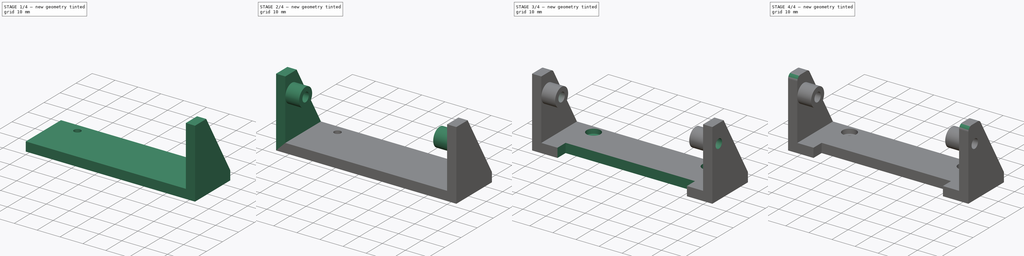
[diagram: build sequence overview — one tinted view per stage of 4, left to right]
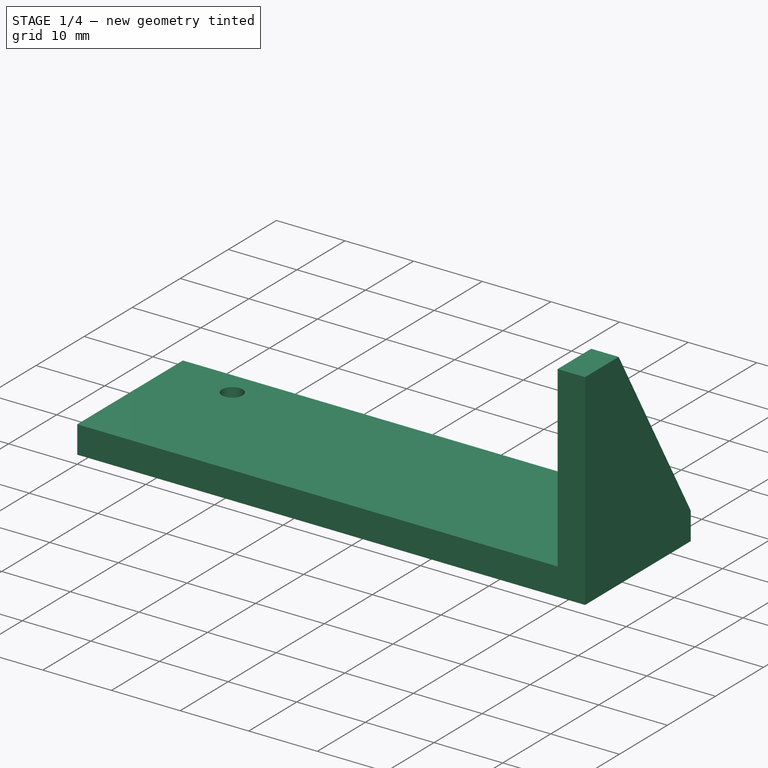
[diagram: stage 1 of 4 — iso view after this stage's code; geometry added in this stage tinted green]
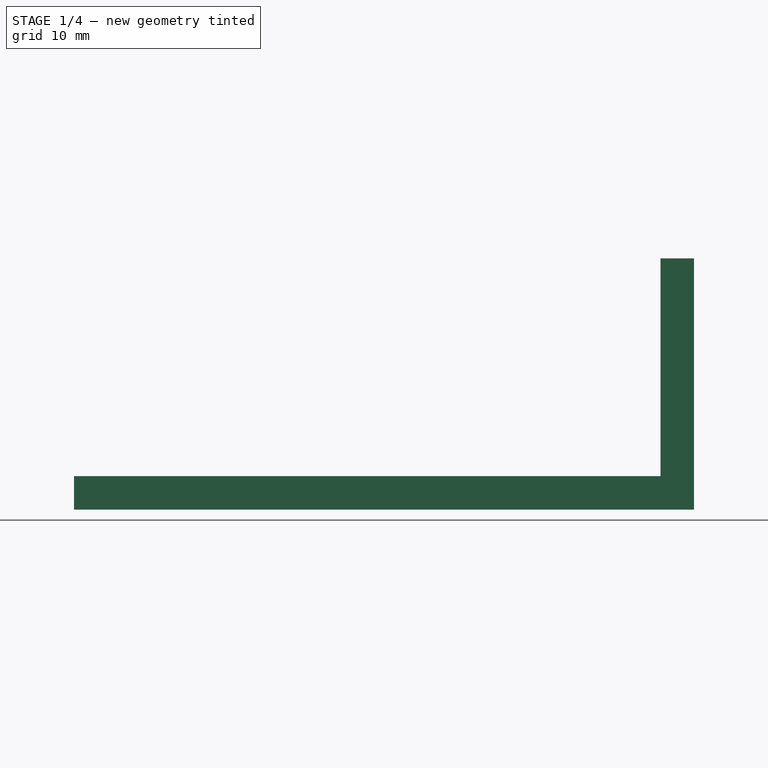
[diagram: stage 1 of 4 — front view after this stage's code; geometry added in this stage tinted green]
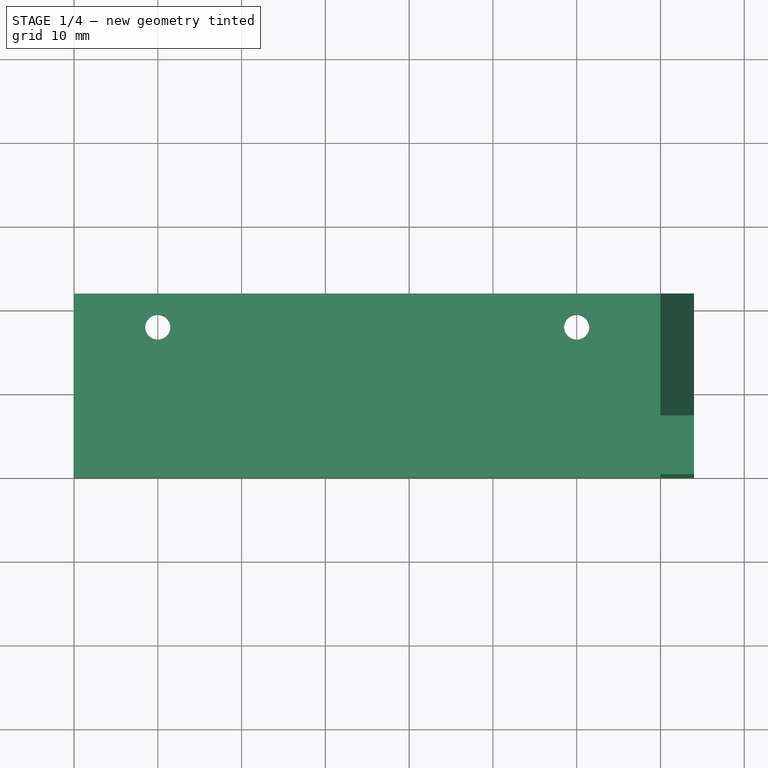
[diagram: stage 1 of 4 — top view after this stage's code; geometry added in this stage tinted green]
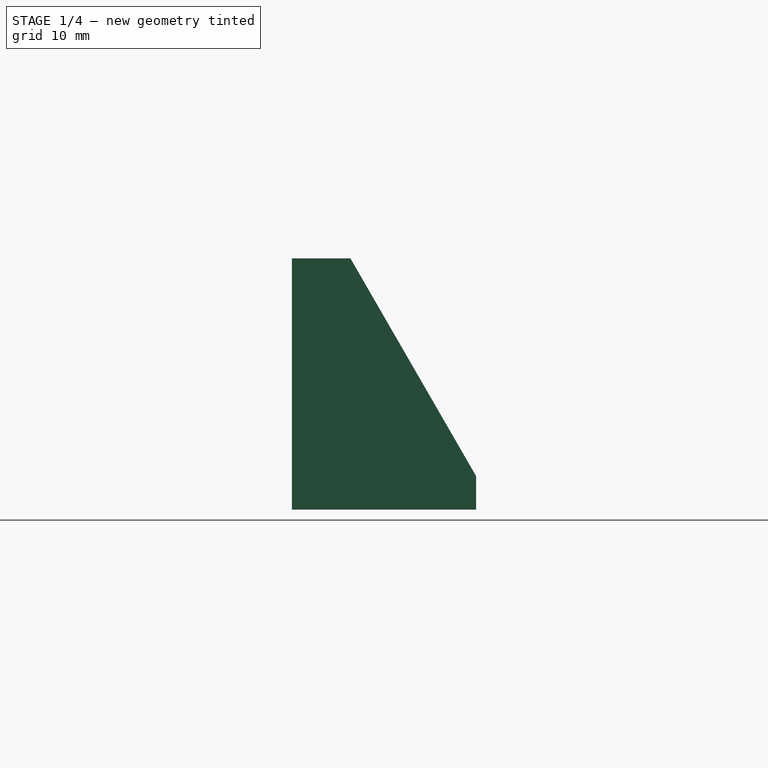
[diagram: stage 1 of 4 — right view after this stage's code; geometry added in this stage tinted green]
FCSTD DOCUMENT  (FreeCAD 0.16R6706 (Git))
Label: iROB-EA_SensorSuelo_Soporte
License: All rights reserved
LicenseURL: http://en.wikipedia.org/wiki/All_rights_reserved
objects: Sketcher::SketchObject×9, PartDesign::Pad×5, PartDesign::Pocket×4, PartDesign::Fillet×4
note: 31 computed .brp shape members not serialized (recipe doc carries the construction recipe); baked Part::Feature solids carry a one-line shape summary decoded from their .brp

FEATURE [Sketcher::SketchObject] Sketch  label="Base"
  sketch-geometry (4):
    g0: LineSegment StartX=0 StartY=22 StartZ=0 EndX=70 EndY=22 EndZ=0
    g1: LineSegment StartX=70 StartY=22 StartZ=0 EndX=70 EndY=0 EndZ=0
    g2: LineSegment StartX=70 StartY=0 StartZ=0 EndX=0 EndY=0 EndZ=0
    g3: LineSegment StartX=0 StartY=0 StartZ=0 EndX=0 EndY=22 EndZ=0
  constraints (11):
    c: Coincident(g0,g1)
    c: Coincident(g1,g2)
    c: Coincident(g2,g3)
    c: Coincident(g3,g0)
    c: Horizontal(g0)
    c: Horizontal(g2)
    c: Vertical(g1)
    c: Vertical(g3)
    c: DistanceX(g0,g0) = 70
    c: DistanceY(g3,g3) = 22
    c: Coincident(g2,g-1)
FEATURE [PartDesign::Pad] Pad
  Length = 4
  Length2 = 100
  Sketch = -> Sketch
  Type = 0
FEATURE [Sketcher::SketchObject] Sketch001  label="Tornillos_Base"
  Placement = pos=(0,0,4) rot=(0,0,1;0rad)
  Support = -> Pad [Face6]
  sketch-geometry (2):
    g0: Circle CenterX=10 CenterY=18 CenterZ=0 NormalX=0 NormalY=0 NormalZ=1 Radius=1.5
    g1: Circle CenterX=60 CenterY=18 CenterZ=0 NormalX=0 NormalY=0 NormalZ=1 Radius=1.5
  constraints (6):
    c: Radius(g0) = 1.5
    c: Radius(g1) = 1.5
    c: DistanceY(g1,g0) = 0
    c: DistanceX(g0,g1) = 50
    c: DistanceX(g0,g-1) = -10
    c: DistanceY(g-1,g0) = 18
FEATURE [PartDesign::Pocket] Pocket
  Length = 7
  Sketch = -> Sketch001
  Type = 0
FEATURE [Sketcher::SketchObject] Sketch002  label="Lado_Derecho"
  Placement = pos=(70,0,0) rot=(0.57735,0.57735,0.57735;2.0944rad)
  Support = -> Pocket [Face3]
  sketch-geometry (5):
    g0: LineSegment StartX=0 StartY=30 StartZ=0 EndX=0 EndY=0 EndZ=0
    g1: LineSegment StartX=0 StartY=0 StartZ=0 EndX=22 EndY=0 EndZ=0
    g2: LineSegment StartX=22 StartY=4 StartZ=0 EndX=22 EndY=0 EndZ=0
    g3: LineSegment StartX=6.98889 StartY=30 StartZ=0 EndX=22 EndY=4 EndZ=0
    g4: LineSegment StartX=0 StartY=30 StartZ=0 EndX=6.98889 EndY=30 EndZ=0
  constraints (14):
    c: Vertical(g0)
    c: DistanceY(g0,g0) = 30
    c: Horizontal(g1)
    c: DistanceX(g1,g1) = 22
    c: Coincident(g0,g1)
    c: Vertical(g2)
    c: DistanceY(g2,g2) = 4
    c: Coincident(g2,g1)
    c: Coincident(g3,g2)
    c: Angle(g3,g1) = 1.0472
    c: Horizontal(g4)
    c: Coincident(g4,g3)
    c: Coincident(g4,g0)
    c: Coincident(g0,g-1)
FEATURE [PartDesign::Pad] Pad001
  Length = 4
  Length2 = 100
  Sketch = -> Sketch002
  Type = 0
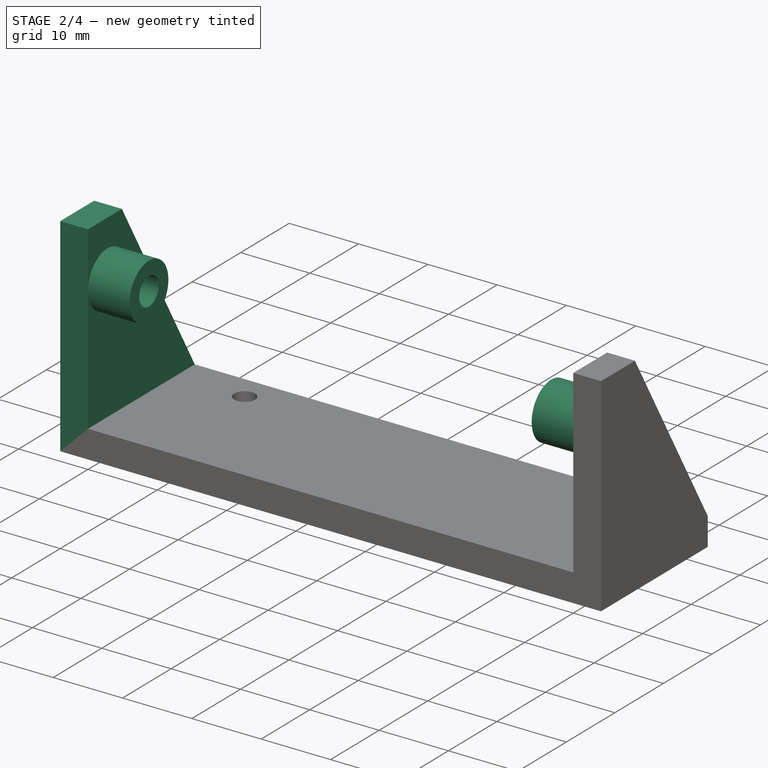
[diagram: stage 2 of 4 — iso view after this stage's code; geometry added in this stage tinted green]
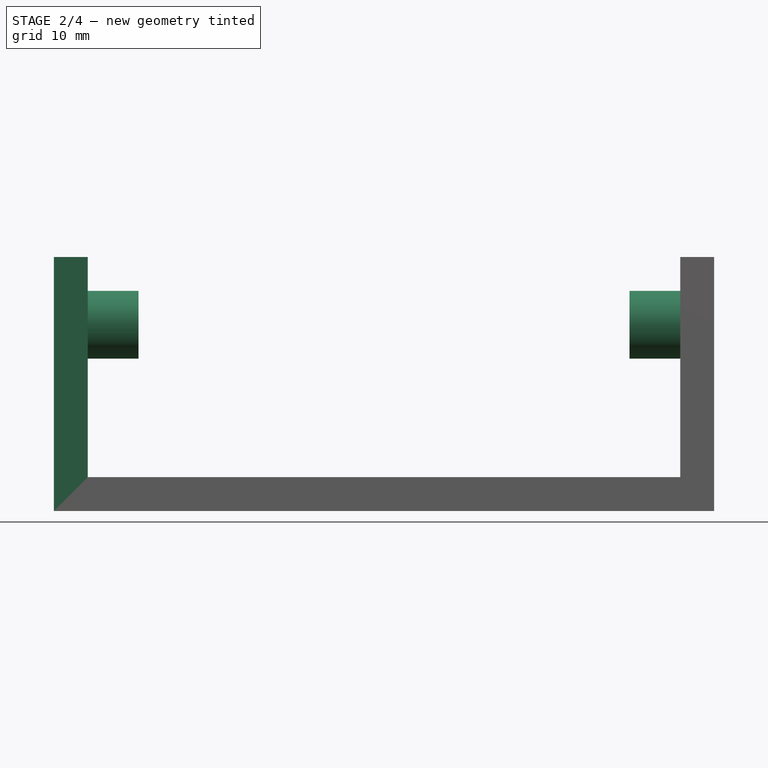
[diagram: stage 2 of 4 — front view after this stage's code; geometry added in this stage tinted green]
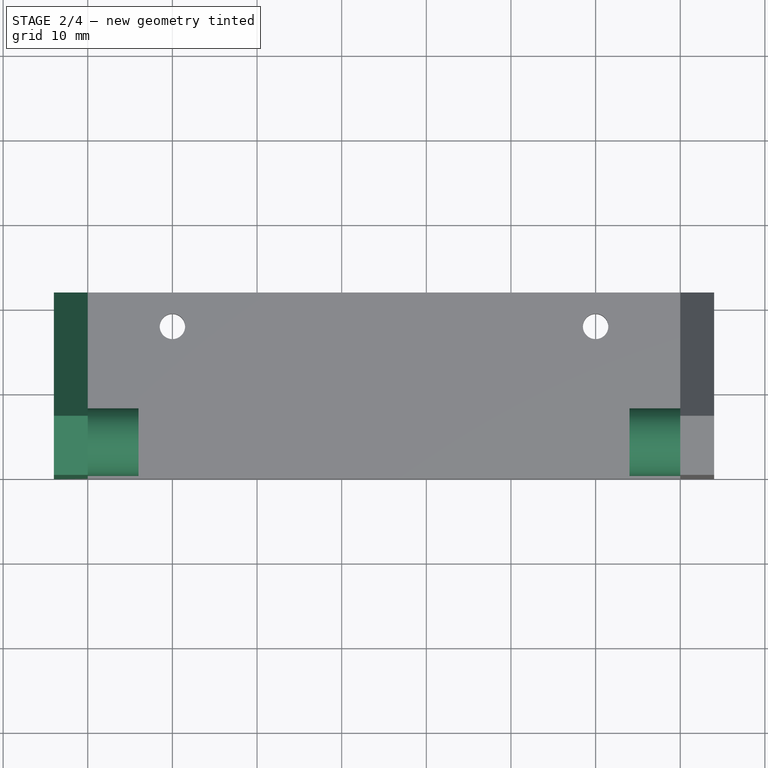
[diagram: stage 2 of 4 — top view after this stage's code; geometry added in this stage tinted green]
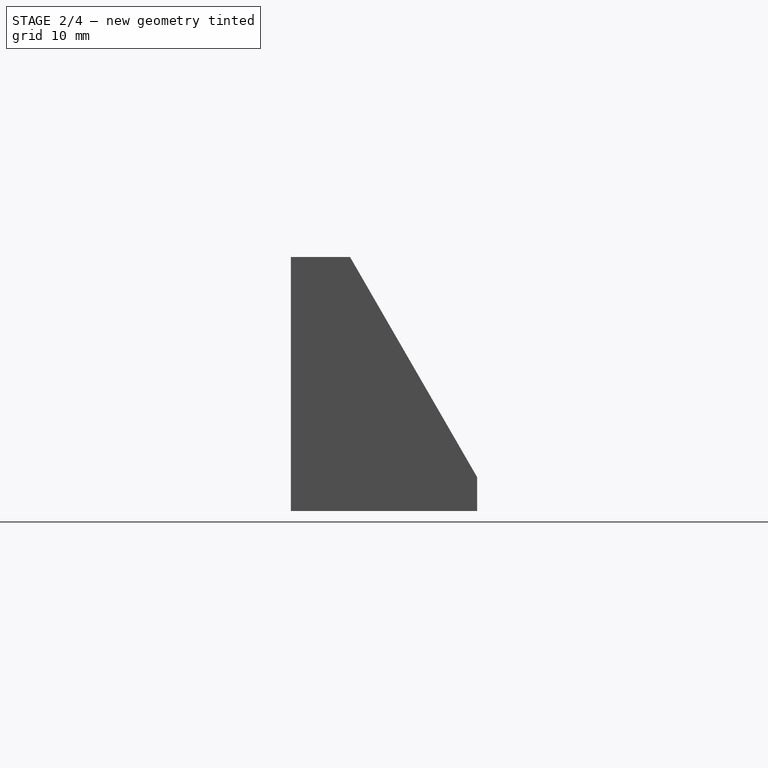
[diagram: stage 2 of 4 — right view after this stage's code; geometry added in this stage tinted green]
FEATURE [Sketcher::SketchObject] Sketch003  label="Lado_Izquierdo"
  Placement = pos=(0,0,0) rot=(0.57735,-0.57735,-0.57735;2.0944rad)
  Support = -> Pad001 [Face1]
  sketch-geometry (5):
    g0: LineSegment StartX=-22 StartY=0 StartZ=0 EndX=0 EndY=0 EndZ=0
    g1: LineSegment StartX=-22 StartY=4 StartZ=0 EndX=-22 EndY=0 EndZ=0
    g2: LineSegment StartX=0 StartY=30 StartZ=0 EndX=0 EndY=0 EndZ=0
    g3: LineSegment StartX=-6.98889 StartY=30 StartZ=0 EndX=-22 EndY=4 EndZ=0
    g4: LineSegment StartX=-6.98889 StartY=30 StartZ=0 EndX=0 EndY=30 EndZ=0
  constraints (14):
    c: Horizontal(g0)
    c: DistanceX(g0,g0) = 22
    c: Vertical(g1)
    c: DistanceY(g1,g1) = 4
    c: Coincident(g1,g0)
    c: Vertical(g2)
    c: DistanceY(g2,g2) = 30
    c: Coincident(g2,g0)
    c: Coincident(g3,g1)
    c: Angle(g0,g3) = 1.0472
    c: Horizontal(g4)
    c: Coincident(g4,g2)
    c: Coincident(g4,g3)
    c: Coincident(g0,g-1)
FEATURE [PartDesign::Pad] Pad002
  Length = 4
  Length2 = 100
  Sketch = -> Sketch003
  Type = 0
FEATURE [Sketcher::SketchObject] Sketch004  label="Cilindro__Izquierdo"
  Placement = pos=(70,0,0) rot=(0.57735,-0.57735,-0.57735;2.0944rad)
  Support = -> Pad002 [Face4]
  sketch-geometry (2):
    g0: Circle CenterX=-4 CenterY=22 CenterZ=0 NormalX=0 NormalY=0 NormalZ=1 Radius=2
    g1: Circle CenterX=-4 CenterY=22 CenterZ=0 NormalX=0 NormalY=0 NormalZ=1 Radius=4
  constraints (5):
    c: Radius(g0) = 2
    c: Radius(g1) = 4
    c: Coincident(g1,g0)
    c: DistanceX(g0,g-1) = 4
    c: DistanceY(g-1,g0) = 22
FEATURE [PartDesign::Pad] Pad003
  Length = 6
  Length2 = 100
  Sketch = -> Sketch004
  Type = 0
FEATURE [Sketcher::SketchObject] Sketch005  label="Cilindro_Derecho"
  Placement = pos=(0,0,0) rot=(0.57735,0.57735,0.57735;2.0944rad)
  Support = -> Pad003 [Face4]
  sketch-geometry (2):
    g0: Circle CenterX=4 CenterY=22 CenterZ=0 NormalX=0 NormalY=0 NormalZ=1 Radius=2
    g1: Circle CenterX=4 CenterY=22 CenterZ=0 NormalX=0 NormalY=0 NormalZ=1 Radius=4
  constraints (5):
    c: Radius(g0) = 2
    c: Radius(g1) = 4
    c: Coincident(g1,g0)
    c: DistanceX(g0,g-1) = -4
    c: DistanceY(g-1,g0) = 22
FEATURE [PartDesign::Pad] Pad004
  Length = 6
  Length2 = 100
  Sketch = -> Sketch005
  Type = 0
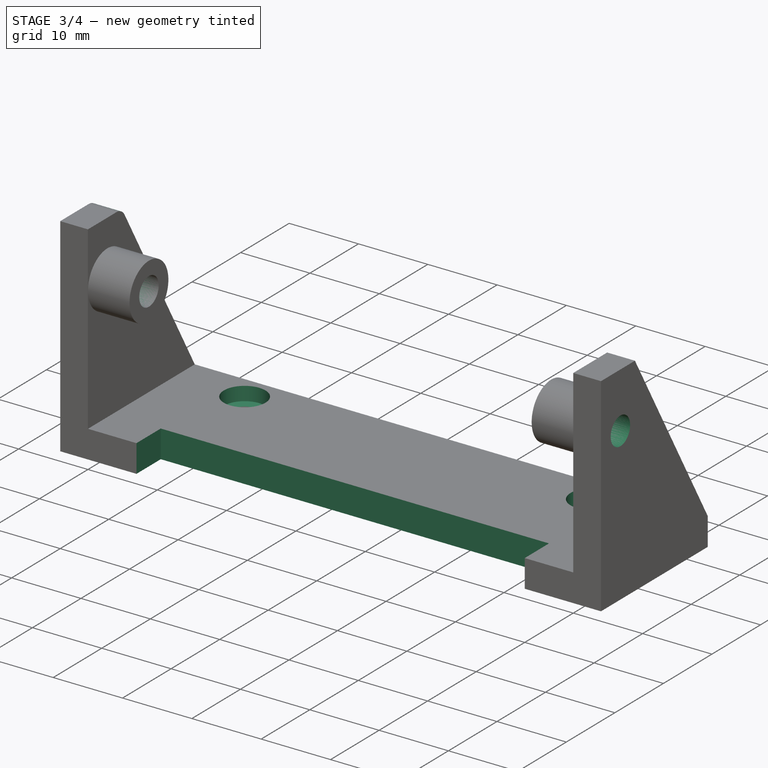
[diagram: stage 3 of 4 — iso view after this stage's code; geometry added in this stage tinted green]
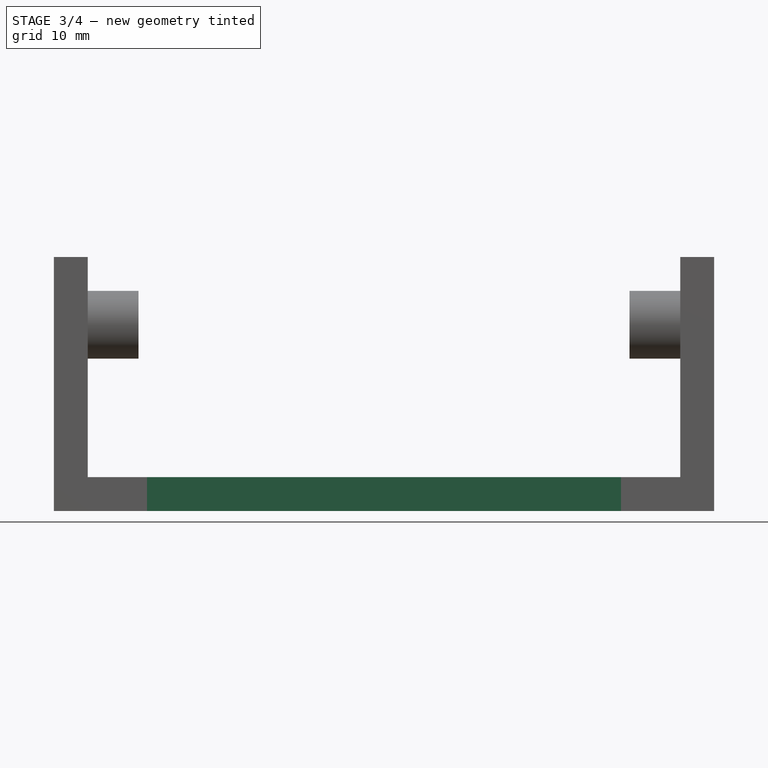
[diagram: stage 3 of 4 — front view after this stage's code; geometry added in this stage tinted green]
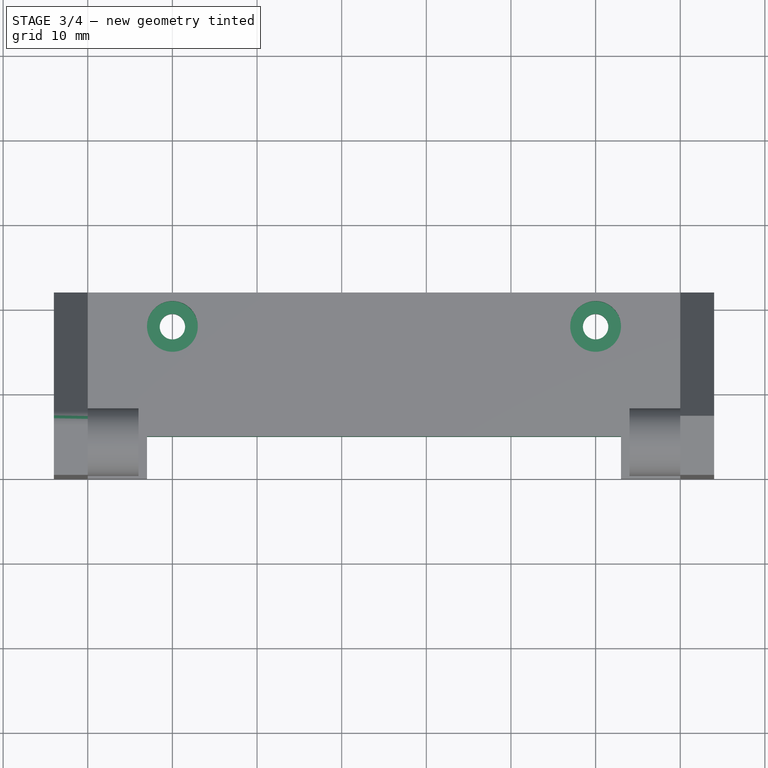
[diagram: stage 3 of 4 — top view after this stage's code; geometry added in this stage tinted green]
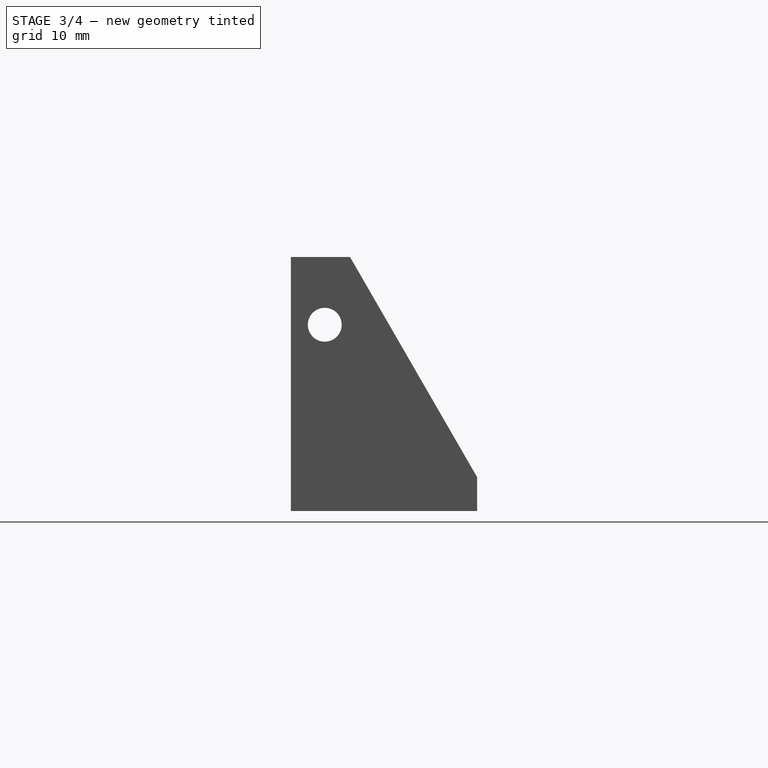
[diagram: stage 3 of 4 — right view after this stage's code; geometry added in this stage tinted green]
FEATURE [Sketcher::SketchObject] Sketch006  label="Taladro_Varilla"
  Placement = pos=(74,0,0) rot=(0.57735,0.57735,0.57735;2.0944rad)
  Support = -> Pad004 [Face7]
  sketch-geometry (1):
    g0: Circle CenterX=4 CenterY=22 CenterZ=0 NormalX=0 NormalY=0 NormalZ=1 Radius=2
  constraints (3):
    c: Radius(g0) = 2
    c: DistanceX(g0,g-1) = -4
    c: DistanceY(g-1,g0) = 22
FEATURE [PartDesign::Pocket] Pocket001
  Length = 80
  Sketch = -> Sketch006
  Type = 0
FEATURE [Sketcher::SketchObject] Sketch007  label="Tornillos_Base_Cabeza"
  Placement = pos=(0,0,4) rot=(0,0,1;0rad)
  Support = -> Pocket001 [Face11]
  sketch-geometry (2):
    g0: Circle CenterX=10 CenterY=18 CenterZ=0 NormalX=0 NormalY=0 NormalZ=1 Radius=3
    g1: Circle CenterX=60 CenterY=18 CenterZ=0 NormalX=0 NormalY=0 NormalZ=1 Radius=3
  constraints (6):
    c: Radius(g0) = 3
    c: DistanceX(g0,g-1) = -10
    c: DistanceY(g-1,g0) = 18
    c: Radius(g1) = 3
    c: DistanceY(g0,g1) = 0
    c: DistanceX(g0,g1) = 50
FEATURE [PartDesign::Pocket] Pocket002
  Length = 2
  Sketch = -> Sketch007
  Type = 0
FEATURE [Sketcher::SketchObject] Sketch008
  Placement = pos=(0,0,4) rot=(0,0,1;0rad)
  Support = -> Pocket002 [Face11]
  sketch-geometry (4):
    g0: LineSegment StartX=7 StartY=5 StartZ=0 EndX=63 EndY=5 EndZ=0
    g1: LineSegment StartX=63 StartY=5 StartZ=0 EndX=63 EndY=0 EndZ=0
    g2: LineSegment StartX=63 StartY=0 StartZ=0 EndX=7 EndY=0 EndZ=0
    g3: LineSegment StartX=7 StartY=0 StartZ=0 EndX=7 EndY=5 EndZ=0
  constraints (12):
    c: Coincident(g0,g1)
    c: Coincident(g1,g2)
    c: Coincident(g2,g3)
    c: Coincident(g3,g0)
    c: Horizontal(g0)
    c: Horizontal(g2)
    c: Vertical(g1)
    c: Vertical(g3)
    c: DistanceY(g1,g1) = 5
    c: DistanceX(g0,g0) = 56
    c: DistanceY(g-1,g2) = 0
    c: DistanceX(g-1,g2) = 7
FEATURE [PartDesign::Pocket] Pocket003
  Length = 4
  Sketch = -> Sketch008
  Type = 0
FEATURE [PartDesign::Fillet] Fillet
  Base = -> Pocket003 [Edge1]
  Radius = 2
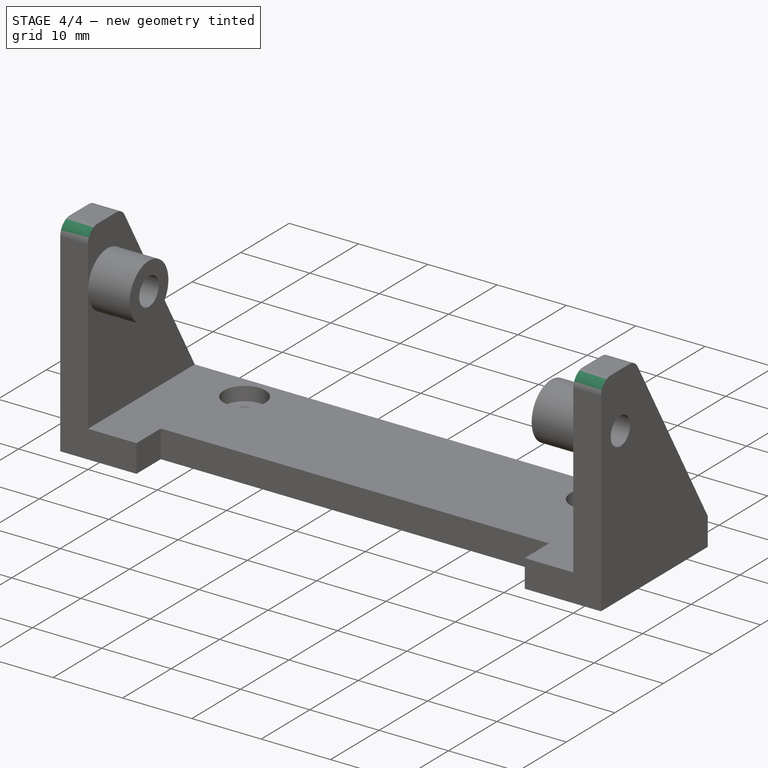
[diagram: stage 4 of 4 — iso view after this stage's code; geometry added in this stage tinted green]
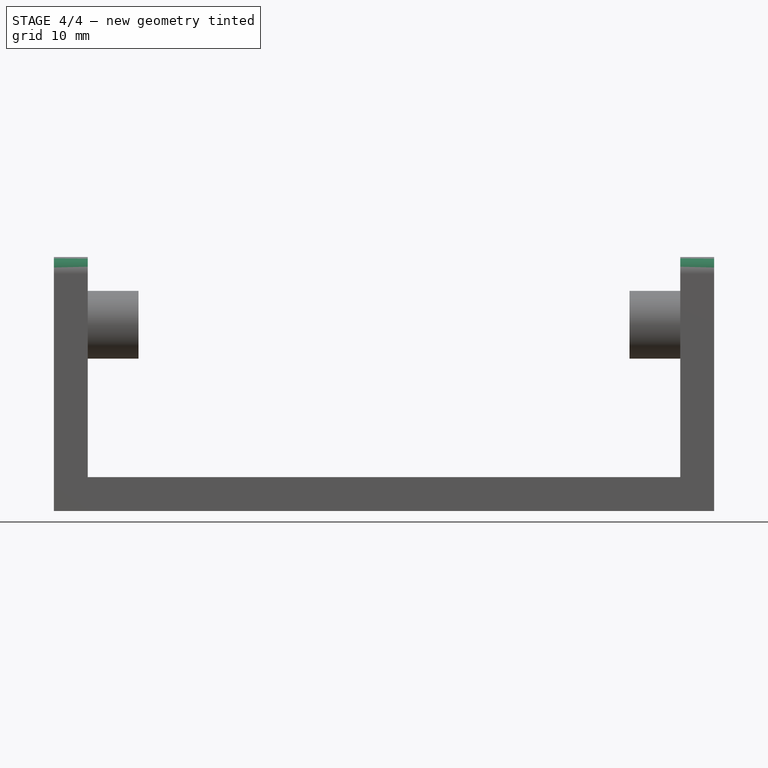
[diagram: stage 4 of 4 — front view after this stage's code; geometry added in this stage tinted green]
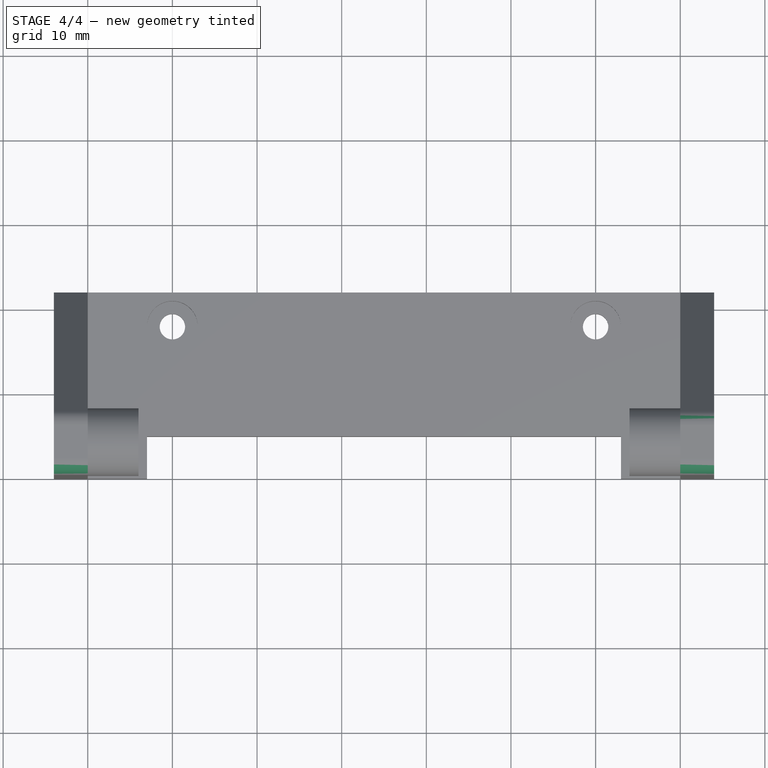
[diagram: stage 4 of 4 — top view after this stage's code; geometry added in this stage tinted green]
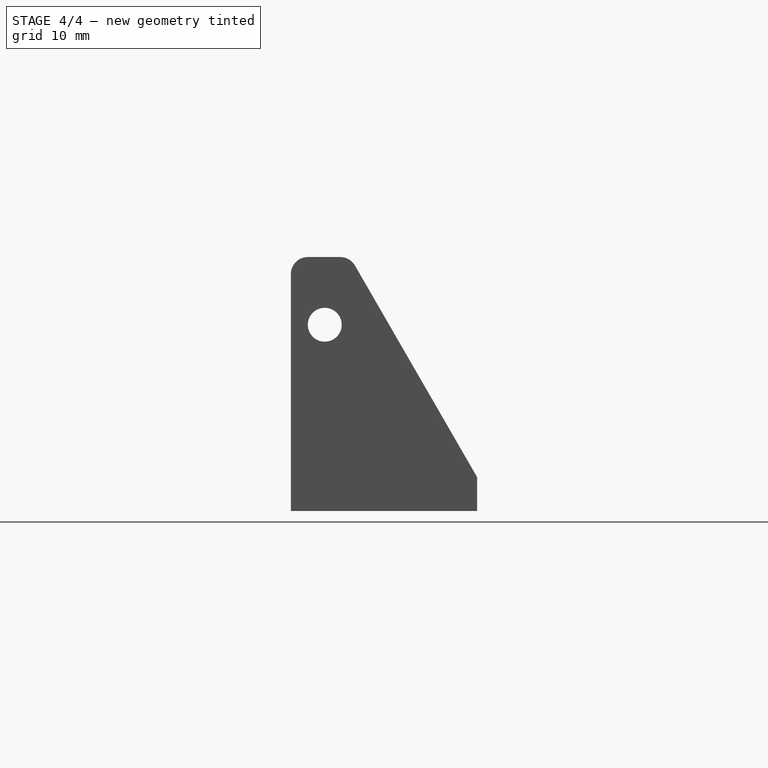
[diagram: stage 4 of 4 — right view after this stage's code; geometry added in this stage tinted green]
FEATURE [PartDesign::Fillet] Fillet001
  Base = -> Fillet [Edge3]
  Radius = 2
FEATURE [PartDesign::Fillet] Fillet002
  Base = -> Fillet001 [Edge69]
  Radius = 2
FEATURE [PartDesign::Fillet] Fillet003
  Base = -> Fillet002 [Edge22]
  Radius = 2
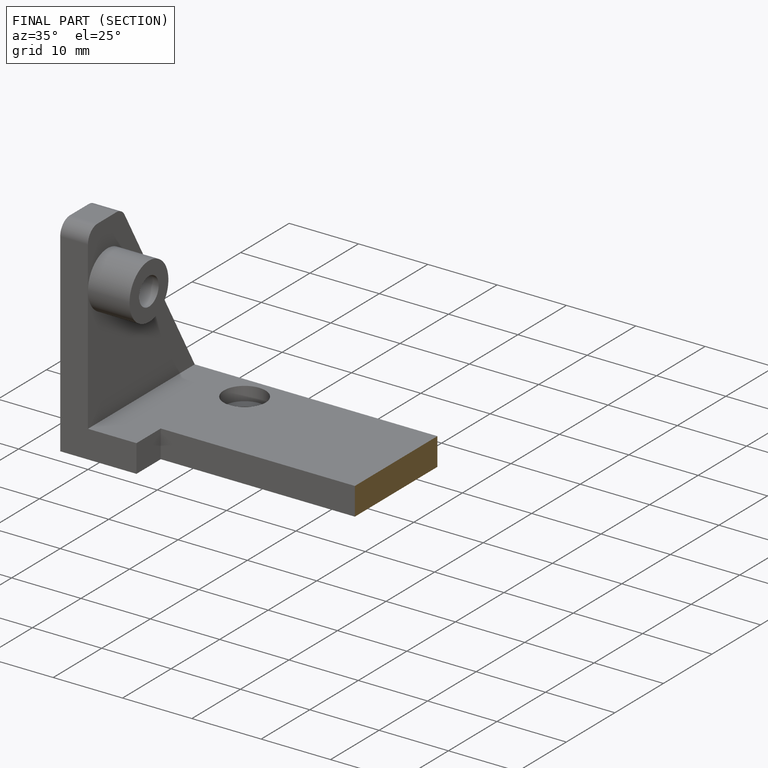
[diagram: finished part — half-section view (interior)]
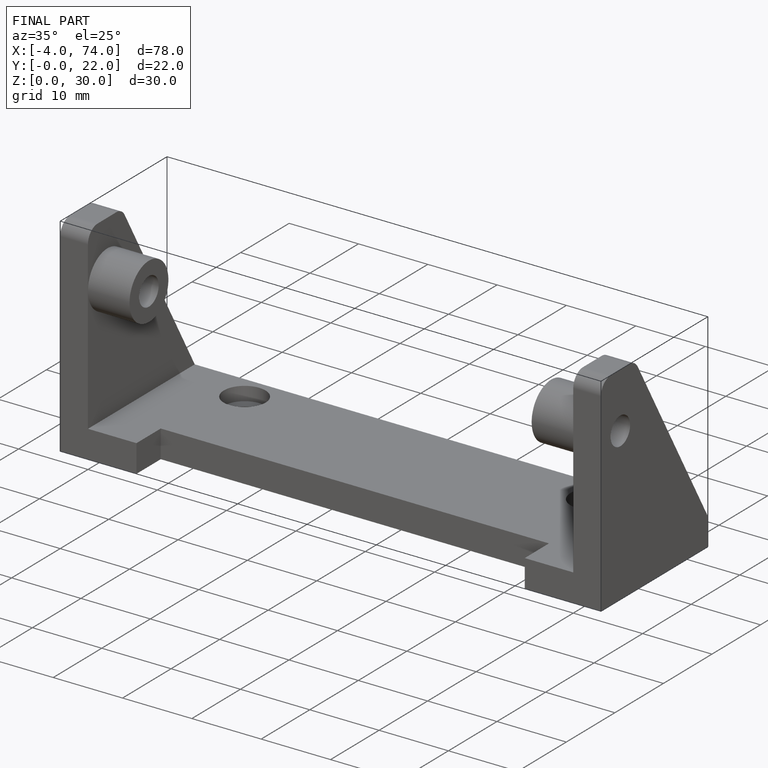
[diagram: finished part — iso view with bounding-box wireframe]
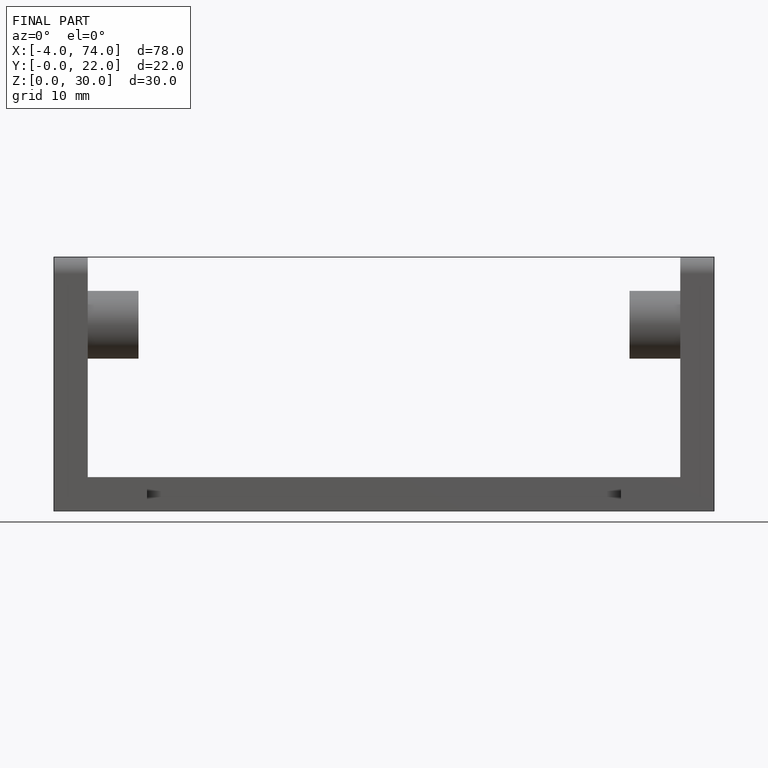
[diagram: finished part — front view with bounding-box wireframe]
